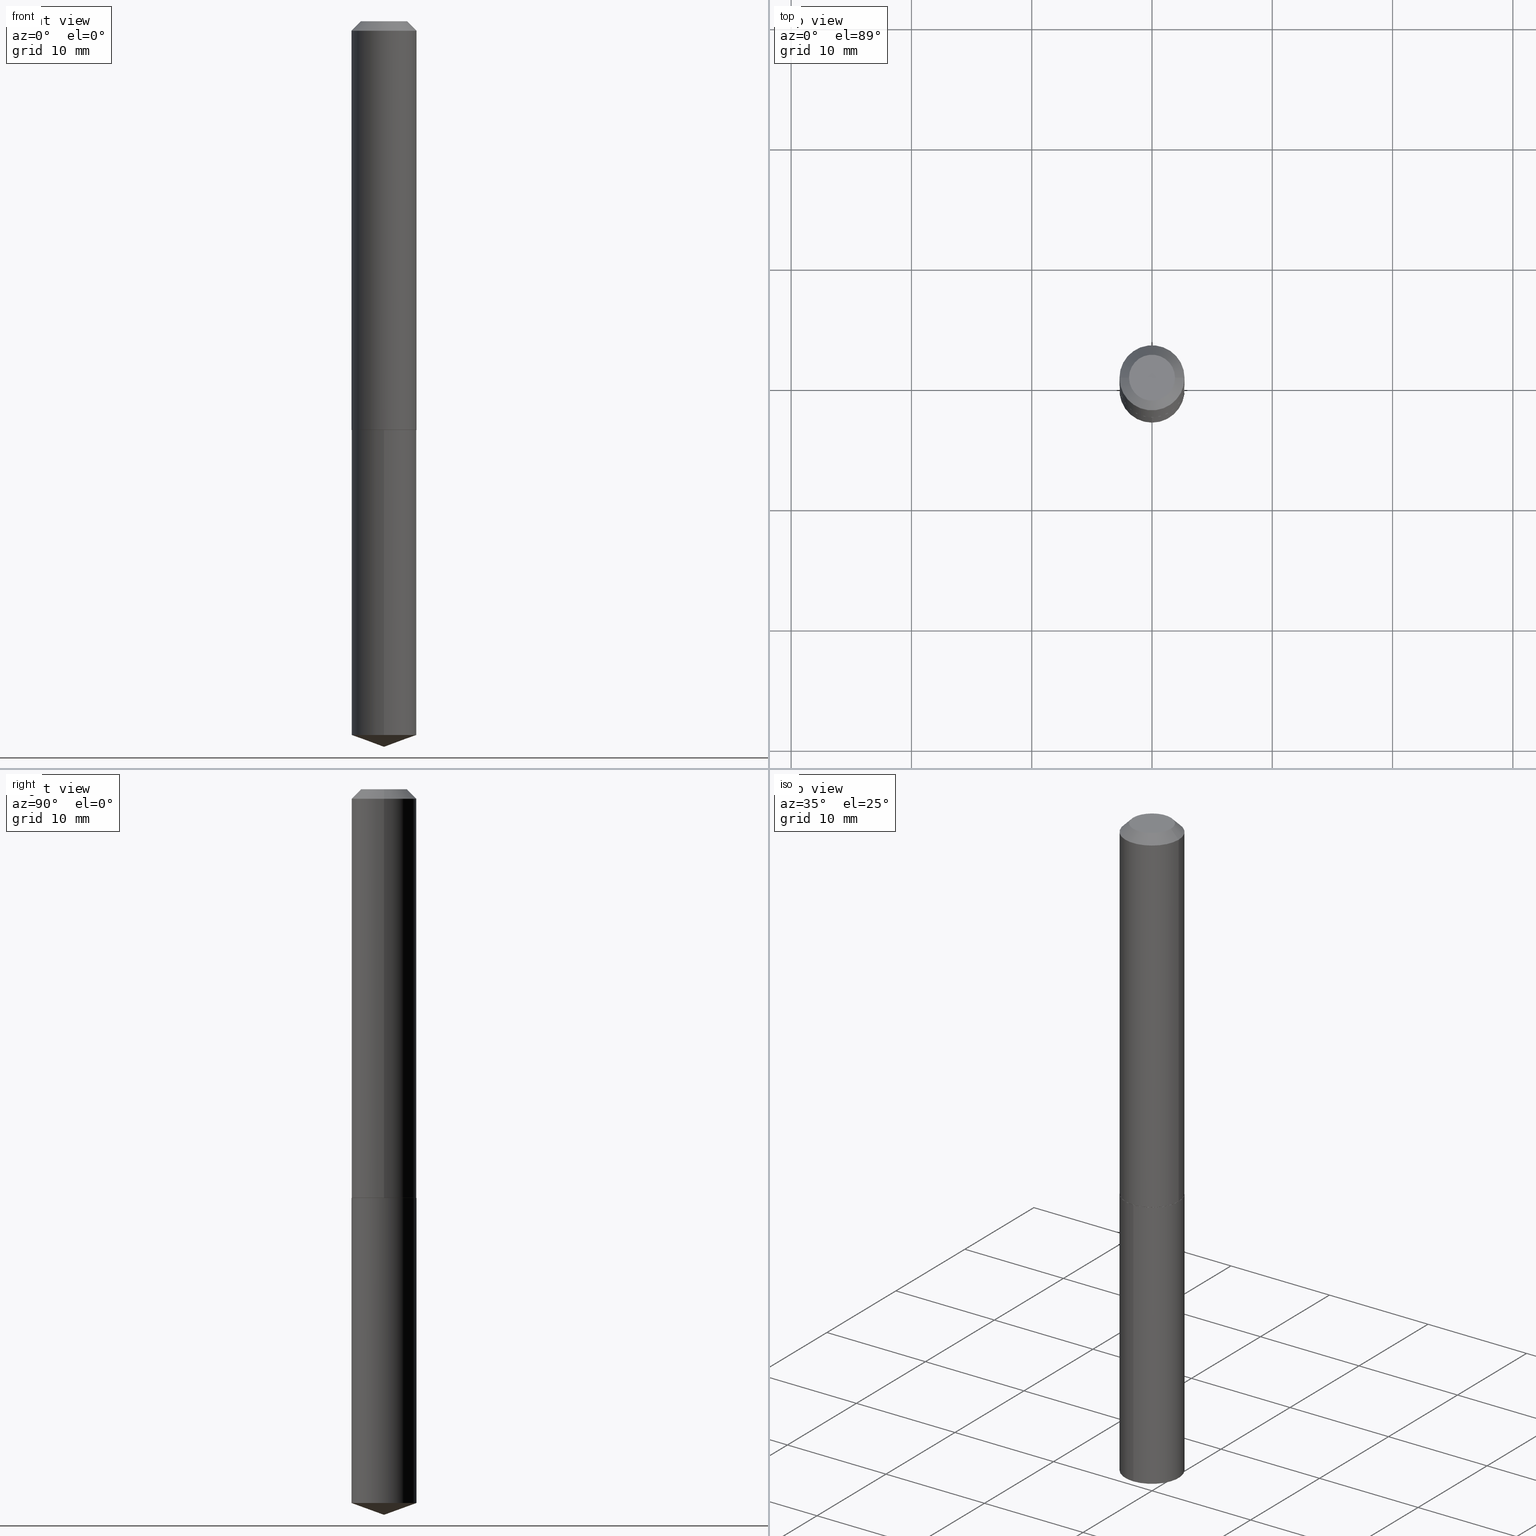
[diagram: canonical four-view strip — front | top / right | iso, engineering-drawing reading convention]
A machine part, canonical four-view strip (front | top / right | iso — engineering-drawing reading convention). The complete STEP part file that produces these views, byte-faithful:
ISO-10303-21;
HEADER;
FILE_DESCRIPTION (( 'STEP AP203' ),
    '1' );
FILE_NAME ('56003.STEP',
    '2024-04-22T19:34:57',
    ( '' ),
    ( '' ),
    'SwSTEP 2.0',
    'SolidWorks 2023',
    '' );
FILE_SCHEMA (( 'CONFIG_CONTROL_DESIGN' ));
ENDSEC;

DATA;
#1 = DIRECTION ( 'NONE',  ( -6.982962677686265133E-15, -1.000000000000000000, 2.565115487008698002E-15 ) ) ;
#2 = AXIS2_PLACEMENT_3D ( 'NONE', #129, #252, #187 ) ;
#3 = ORIENTED_EDGE ( 'NONE', *, *, #158, .T. ) ;
#4 = FACE_OUTER_BOUND ( 'NONE', #274, .T. ) ;
#5 = ORIENTED_EDGE ( 'NONE', *, *, #90, .F. ) ;
#6 = DIMENSIONAL_EXPONENTS ( 1.000000000000000000, 0.000000000000000000, 0.000000000000000000, 0.000000000000000000, 0.000000000000000000, 0.000000000000000000, 0.000000000000000000 ) ;
#7 = DIRECTION ( 'NONE',  ( 1.000000000000000000, 0.000000000000000000, 0.000000000000000000 ) ) ;
#8 = AXIS2_PLACEMENT_3D ( 'NONE', #228, #181, #309 ) ;
#9 = CARTESIAN_POINT ( 'NONE',  ( 5.807736114830398271E-29, -8.292629487511005111E-15, -2.375000000000000000 ) ) ;
#10 = VERTEX_POINT ( 'NONE', #286 ) ;
#11 = ORIENTED_EDGE ( 'NONE', *, *, #169, .F. ) ;
#12 = DIRECTION ( 'NONE',  ( 6.982962677686265922E-15, 1.000000000000000000, -3.491633468425686923E-15 ) ) ;
#13 = CARTESIAN_POINT ( 'NONE',  ( 3.272037262675713448E-29, -4.671602031372129721E-15, -1.338000000000000300 ) ) ;
#14 = LINE ( 'NONE', #352, #278 ) ;
#15 = EDGE_LOOP ( 'NONE', ( #77, #315, #342 ) ) ;
#16 = AXIS2_PLACEMENT_3D ( 'NONE', #196, #238, #243 ) ;
#17 = EDGE_CURVE ( 'NONE', #10, #287, #202, .T. ) ;
#18 = UNCERTAINTY_MEASURE_WITH_UNIT (LENGTH_MEASURE( 1.000000000000000082E-05 ), #363, 'distance_accuracy_value', 'NONE');
#19 = CONICAL_SURFACE ( 'NONE', #372, 0.1065000000000001640, 0.7853981633973970977 ) ;
#20 = DIRECTION ( 'NONE',  ( 1.000000000000000000, -6.982962677686266711E-15, 0.000000000000000000 ) ) ;
#21 = DIRECTION ( 'NONE',  ( -2.445468806185136597E-29, 3.491481338843145583E-15, 1.000000000000000000 ) ) ;
#22 = APPROVAL_ROLE ( '' ) ;
#23 = CARTESIAN_POINT ( 'NONE',  ( 3.270814528272620647E-29, -4.669856290702708218E-15, -1.337500000000000133 ) ) ;
#24 = APPROVAL_DATE_TIME ( #140, #177 ) ;
#25 = DIRECTION ( 'NONE',  ( -2.445468806185136877E-29, 3.491481338843145188E-15, 1.000000000000000000 ) ) ;
#26 = AXIS2_PLACEMENT_3D ( 'NONE', #214, #151, #12 ) ;
#27 =( NAMED_UNIT ( * ) PLANE_ANGLE_UNIT ( ) SI_UNIT ( $, .RADIAN. ) );
#28 = DIRECTION ( 'NONE',  ( -2.445468806185136597E-29, 3.491481338843145583E-15, 1.000000000000000000 ) ) ;
#29 = CARTESIAN_POINT ( 'NONE',  ( 5.713089078957504114E-29, -8.157080343747521940E-15, -2.336237170050650125 ) ) ;
#30 = ADVANCED_FACE ( 'NONE', ( #50 ), #259, .T. ) ;
#31 = AXIS2_PLACEMENT_3D ( 'NONE', #102, #162, #217 ) ;
#32 = DIRECTION ( 'NONE',  ( -2.445362574665431323E-29, 3.491633468425686923E-15, 1.000000000000000000 ) ) ;
#33 = PERSON_AND_ORGANIZATION ( #218, #193 ) ;
#34 = EDGE_LOOP ( 'NONE', ( #353, #371, #103 ) ) ;
#35 = AXIS2_PLACEMENT_3D ( 'NONE', #13, #191, #350 ) ;
#36 = CC_DESIGN_PERSON_AND_ORGANIZATION_ASSIGNMENT ( #356, #161, ( #380 ) ) ;
#37 = DIRECTION ( 'NONE',  ( 6.676917655467978384E-15, 0.9396926207859110924, 0.3420201433256611079 ) ) ;
#38 = ORIENTED_EDGE ( 'NONE', *, *, #123, .T. ) ;
#39 = APPLICATION_CONTEXT ( 'configuration controlled 3d designs of mechanical parts and assemblies' ) ;
#40 = DIRECTION ( 'NONE',  ( -1.000000000000000000, 6.982962677686267499E-15, 0.000000000000000000 ) ) ;
#41 = EDGE_LOOP ( 'NONE', ( #369, #264 ) ) ;
#42 = APPROVAL_PERSON_ORGANIZATION ( #316, #121, #318 ) ;
#43 = CALENDAR_DATE ( 2024, 22, 4 ) ;
#44 = DIRECTION ( 'NONE',  ( -6.982962677686267499E-15, -1.000000000000000000, 3.475157955500680377E-15 ) ) ;
#45 = ORIENTED_EDGE ( 'NONE', *, *, #340, .T. ) ;
#46 = CC_DESIGN_DATE_AND_TIME_ASSIGNMENT ( #165, #388, ( #88 ) ) ;
#47 = CC_DESIGN_DATE_AND_TIME_ASSIGNMENT ( #189, #262, ( #327 ) ) ;
#48 = COORDINATED_UNIVERSAL_TIME_OFFSET ( 5, 0, .BEHIND. ) ;
#49 = LINE ( 'NONE', #75, #153 ) ;
#50 = FACE_OUTER_BOUND ( 'NONE', #160, .T. ) ;
#51 = AXIS2_PLACEMENT_3D ( 'NONE', #125, #288, #20 ) ;
#52 = SHAPE_DEFINITION_REPRESENTATION ( #275, #329 ) ;
#53 = FACE_OUTER_BOUND ( 'NONE', #249, .T. ) ;
#54 = PERSON_AND_ORGANIZATION ( #218, #193 ) ;
#55 = EDGE_CURVE ( 'NONE', #303, #378, #289, .T. ) ;
#56 = DIRECTION ( 'NONE',  ( -6.982962677686265133E-15, -1.000000000000000000, 2.565115487008698002E-15 ) ) ;
#57 =( LENGTH_UNIT ( ) NAMED_UNIT ( * ) SI_UNIT ( $, .METRE. ) );
#58 = CARTESIAN_POINT ( 'NONE',  ( 0.000000000000000000, 0.000000000000000000, 0.000000000000000000 ) ) ;
#59 = CARTESIAN_POINT ( 'NONE',  ( 7.642090019328602662E-31, -1.091087918388490267E-16, -0.03125000000000020817 ) ) ;
#60 = ADVANCED_FACE ( 'NONE', ( #236 ), #127, .T. ) ;
#61 = AXIS2_PLACEMENT_3D ( 'NONE', #58, #28, #89 ) ;
#62 = LOCAL_TIME ( 15, 34, 57.00000000000000000, #324 ) ;
#63 = ORIENTED_EDGE ( 'NONE', *, *, #376, .T. ) ;
#64 = VERTEX_POINT ( 'NONE', #119 ) ;
#65 = CIRCLE ( 'NONE', #358, 0.1065000000000001640 ) ;
#66 = VECTOR ( 'NONE', #25, 39.37007874015748143 ) ;
#67 = FACE_OUTER_BOUND ( 'NONE', #41, .T. ) ;
#68 = ORIENTED_EDGE ( 'NONE', *, *, #244, .F. ) ;
#69 = EDGE_CURVE ( 'NONE', #71, #306, #147, .T. ) ;
#70 = CARTESIAN_POINT ( 'NONE',  ( -9.046623886020848298E-28, 1.291734586455588968E-13, 36.99507874015748143 ) ) ;
#71 = VERTEX_POINT ( 'NONE', #292 ) ;
#72 = CARTESIAN_POINT ( 'NONE',  ( 5.713089078957504114E-29, -8.157080343747521940E-15, -2.336237170050650125 ) ) ;
#73 = CIRCLE ( 'NONE', #51, 0.1060000000000000386 ) ;
#74 = PERSON_AND_ORGANIZATION_ROLE ( 'design_owner' ) ;
#75 = CARTESIAN_POINT ( 'NONE',  ( 0.1065000000000001640, -5.413541815876296348E-15, -1.337500000000000133 ) ) ;
#76 = EDGE_CURVE ( 'NONE', #180, #64, #198, .T. ) ;
#77 = ORIENTED_EDGE ( 'NONE', *, *, #226, .F. ) ;
#78 = ORIENTED_EDGE ( 'NONE', *, *, #69, .F. ) ;
#79 = PERSON_AND_ORGANIZATION_ROLE ( 'classification_officer' ) ;
#80 = DIRECTION ( 'NONE',  ( -0.7071067811865453523, 2.468850131082234184E-15, -0.7071067811865496822 ) ) ;
#81 = COORDINATED_UNIVERSAL_TIME_OFFSET ( 5, 0, .BEHIND. ) ;
#82 = CYLINDRICAL_SURFACE ( 'NONE', #148, 0.1065000000000000807 ) ;
#83 = APPLICATION_PROTOCOL_DEFINITION ( 'international standard', 'config_control_design', 1994, #240 ) ;
#84 = DIRECTION ( 'NONE',  ( 2.445468806185136597E-29, -3.491481338843145583E-15, -1.000000000000000000 ) ) ;
#85 = DIRECTION ( 'NONE',  ( -2.445362574665431043E-29, 3.491633468425686528E-15, 1.000000000000000000 ) ) ;
#86 = DIRECTION ( 'NONE',  ( -2.445468806185136597E-29, 3.491481338843145583E-15, 1.000000000000000000 ) ) ;
#87 = AXIS2_PLACEMENT_3D ( 'NONE', #256, #381, #56 ) ;
#88 = SECURITY_CLASSIFICATION ( '', '', #186 ) ;
#89 = DIRECTION ( 'NONE',  ( 1.000000000000000000, -6.982962677686267499E-15, 4.876176775795935232E-29 ) ) ;
#90 = EDGE_CURVE ( 'NONE', #145, #361, #222, .T. ) ;
#91 = DIRECTION ( 'NONE',  ( -2.445468806185136597E-29, 3.491481338843145583E-15, 1.000000000000000000 ) ) ;
#92 = CC_DESIGN_APPROVAL ( #177, ( #327 ) ) ;
#93 = EDGE_CURVE ( 'NONE', #283, #306, #110, .T. ) ;
#94 = EDGE_CURVE ( 'NONE', #126, #283, #365, .T. ) ;
#95 = CIRCLE ( 'NONE', #174, 0.1064999999999999974 ) ;
#96 = DIRECTION ( 'NONE',  ( 0.7071067811865112684, -2.468850131081876830E-15, 0.7071067811865837660 ) ) ;
#97 = ORIENTED_EDGE ( 'NONE', *, *, #123, .F. ) ;
#98 = DIRECTION ( 'NONE',  ( -2.445362574665431043E-29, 3.491633468425686528E-15, 1.000000000000000000 ) ) ;
#99 = EDGE_LOOP ( 'NONE', ( #284, #38 ) ) ;
#100 = PRODUCT_RELATED_PRODUCT_CATEGORY ( 'detail', '', ( #333 ) ) ;
#101 = EDGE_CURVE ( 'NONE', #145, #306, #115, .T. ) ;
#102 = CARTESIAN_POINT ( 'NONE',  ( -9.046623886020848298E-28, 1.291734586455588968E-13, 36.99507874015748143 ) ) ;
#103 = ORIENTED_EDGE ( 'NONE', *, *, #237, .F. ) ;
#104 = APPROVAL_STATUS ( 'not_yet_approved' ) ;
#105 = DIRECTION ( 'NONE',  ( 1.000000000000000000, -6.982962677686265922E-15, 4.876176775795935793E-29 ) ) ;
#106 = CALENDAR_DATE ( 2024, 22, 4 ) ;
#107 = PLANE ( 'NONE',  #26 ) ;
#108 = PERSON_AND_ORGANIZATION_ROLE ( 'creator' ) ;
#109 = CARTESIAN_POINT ( 'NONE',  ( -7.436855251735545052E-16, -0.1065000000000046743, -1.337999999999999856 ) ) ;
#110 = LINE ( 'NONE', #362, #134 ) ;
#111 = EDGE_CURVE ( 'NONE', #306, #71, #178, .T. ) ;
#112 = AXIS2_PLACEMENT_3D ( 'NONE', #188, #21, #260 ) ;
#113 = AXIS2_PLACEMENT_3D ( 'NONE', #345, #308, #40 ) ;
#114 = COORDINATED_UNIVERSAL_TIME_OFFSET ( 5, 0, .BEHIND. ) ;
#115 = LINE ( 'NONE', #390, #212 ) ;
#116 = DIRECTION ( 'NONE',  ( -2.445468806185136597E-29, 3.491481338843145583E-15, 1.000000000000000000 ) ) ;
#117 = CARTESIAN_POINT ( 'NONE',  ( -0.1065000000000001640, -3.913128277118200453E-15, -1.337500000000000133 ) ) ;
#118 = CC_DESIGN_PERSON_AND_ORGANIZATION_ASSIGNMENT ( #132, #108, ( #327 ) ) ;
#119 = CARTESIAN_POINT ( 'NONE',  ( -7.436855251735300505E-16, -0.1065000000000081160, -2.336237170050649681 ) ) ;
#120 = DIRECTION ( 'NONE',  ( -1.000000000000000000, 6.982962677686267499E-15, 0.000000000000000000 ) ) ;
#121 = APPROVAL ( #295, 'UNSPECIFIED' ) ;
#122 = ORIENTED_EDGE ( 'NONE', *, *, #111, .F. ) ;
#123 = EDGE_CURVE ( 'NONE', #283, #126, #367, .T. ) ;
#124 = APPROVAL ( #351, 'UNSPECIFIED' ) ;
#125 = CARTESIAN_POINT ( 'NONE',  ( 3.272037262675713448E-29, -4.671602031372129721E-15, -1.338000000000000300 ) ) ;
#126 = VERTEX_POINT ( 'NONE', #166 ) ;
#127 = CONICAL_SURFACE ( 'NONE', #247, 0.1065000000000000113, 0.7853981633974452814 ) ;
#128 = AXIS2_PLACEMENT_3D ( 'NONE', #152, #156, #105 ) ;
#129 = CARTESIAN_POINT ( 'NONE',  ( 5.989671091818683705E-48, -8.551662891793989687E-34, -2.449293598294718806E-19 ) ) ;
#130 = CARTESIAN_POINT ( 'NONE',  ( 7.567280135845393189E-16, 0.1064999999999953206, -1.338000000000000300 ) ) ;
#131 = ORIENTED_EDGE ( 'NONE', *, *, #101, .F. ) ;
#132 = PERSON_AND_ORGANIZATION ( #218, #193 ) ;
#133 = ORIENTED_EDGE ( 'NONE', *, *, #90, .T. ) ;
#134 = VECTOR ( 'NONE', #269, 39.37007874015748143 ) ;
#135 = PERSON_AND_ORGANIZATION_ROLE ( 'design_supplier' ) ;
#136 = DIRECTION ( 'NONE',  ( -2.445362574665431043E-29, 3.491633468425686528E-15, 1.000000000000000000 ) ) ;
#137 = EDGE_CURVE ( 'NONE', #361, #145, #65, .T. ) ;
#138 = CARTESIAN_POINT ( 'NONE',  ( 3.272037262675712888E-29, -4.671602031372128143E-15, -1.338000000000000078 ) ) ;
#139 = FACE_OUTER_BOUND ( 'NONE', #149, .T. ) ;
#140 = DATE_AND_TIME ( #234, #328 ) ;
#141 = DIRECTION ( 'NONE',  ( -2.445468806185136597E-29, 3.491481338843145583E-15, 1.000000000000000000 ) ) ;
#142 = CARTESIAN_POINT ( 'NONE',  ( 7.642090019328602662E-31, -1.091087918388490267E-16, -0.03125000000000020817 ) ) ;
#143 = ADVANCED_FACE ( 'NONE', ( #139 ), #266, .T. ) ;
#144 = DIRECTION ( 'NONE',  ( 1.000000000000000000, -6.982962677686262766E-15, 0.000000000000000000 ) ) ;
#145 = VERTEX_POINT ( 'NONE', #271 ) ;
#146 = DIRECTION ( 'NONE',  ( -6.982962677686265133E-15, -1.000000000000000000, 2.565115487008698002E-15 ) ) ;
#147 = CIRCLE ( 'NONE', #347, 0.1065000000000000113 ) ;
#148 = AXIS2_PLACEMENT_3D ( 'NONE', #207, #354, #230 ) ;
#149 = EDGE_LOOP ( 'NONE', ( #133, #211, #122, #131 ) ) ;
#150 = EDGE_CURVE ( 'NONE', #297, #64, #232, .T. ) ;
#151 = DIRECTION ( 'NONE',  ( 2.445362574665430482E-29, -3.491633468425686923E-15, -1.000000000000000000 ) ) ;
#152 = CARTESIAN_POINT ( 'NONE',  ( 8.640926142602834777E-30, -8.119915819601166498E-15, -1.338000000000000300 ) ) ;
#153 = VECTOR ( 'NONE', #96, 39.37007874015748143 ) ;
#154 = LOCAL_TIME ( 15, 34, 57.00000000000000000, #81 ) ;
#155 = ORIENTED_EDGE ( 'NONE', *, *, #244, .T. ) ;
#156 = DIRECTION ( 'NONE',  ( -2.438088387897960049E-29, 3.491481338843145188E-15, 1.000000000000000000 ) ) ;
#157 = ORIENTED_EDGE ( 'NONE', *, *, #340, .F. ) ;
#158 = EDGE_CURVE ( 'NONE', #297, #378, #220, .T. ) ;
#159 = FACE_OUTER_BOUND ( 'NONE', #338, .T. ) ;
#160 = EDGE_LOOP ( 'NONE', ( #68, #339, #375, #215 ) ) ;
#161 = PERSON_AND_ORGANIZATION_ROLE ( 'creator' ) ;
#162 = DIRECTION ( 'NONE',  ( -2.445362574665431043E-29, 3.491633468425686528E-15, 1.000000000000000000 ) ) ;
#163 = CARTESIAN_POINT ( 'NONE',  ( 7.567280135845637736E-16, 0.1064999999999953206, -1.338000000000000300 ) ) ;
#164 = ORIENTED_EDGE ( 'NONE', *, *, #55, .F. ) ;
#165 = DATE_AND_TIME ( #192, #154 ) ;
#166 = CARTESIAN_POINT ( 'NONE',  ( -0.07524999999999999745, 5.800223374153149725E-16, -4.898587196628091026E-19 ) ) ;
#167 = CARTESIAN_POINT ( 'NONE',  ( 0.1065000000000000113, -8.527943170124366394E-16, -0.03125000000000020817 ) ) ;
#168 = DIRECTION ( 'NONE',  ( 1.000000000000000000, -6.982962677686265922E-15, 4.876211453340348118E-29 ) ) ;
#169 = EDGE_CURVE ( 'NONE', #10, #145, #49, .T. ) ;
#170 = VECTOR ( 'NONE', #332, 39.37007874015748143 ) ;
#171 = CONICAL_SURFACE ( 'NONE', #302, 108.1684023407347013, 1.221730476396035270 ) ;
#172 = CARTESIAN_POINT ( 'NONE',  ( 7.642090019328602662E-31, -1.091087918388490267E-16, -0.03125000000000020817 ) ) ;
#173 = ADVANCED_FACE ( 'NONE', ( #159 ), #298, .T. ) ;
#174 = AXIS2_PLACEMENT_3D ( 'NONE', #138, #85, #146 ) ;
#175 = ORIENTED_EDGE ( 'NONE', *, *, #158, .F. ) ;
#176 = CARTESIAN_POINT ( 'NONE',  ( 0.000000000000000000, 0.000000000000000000, 0.000000000000000000 ) ) ;
#177 = APPROVAL ( #104, 'UNSPECIFIED' ) ;
#178 = CIRCLE ( 'NONE', #320, 0.1065000000000000113 ) ;
#179 = CARTESIAN_POINT ( 'NONE',  ( -0.1065000000000001640, -3.913128277118200453E-15, -1.337500000000000133 ) ) ;
#180 = VERTEX_POINT ( 'NONE', #9 ) ;
#181 = DIRECTION ( 'NONE',  ( -2.445362574665431043E-29, 3.491633468425686528E-15, 1.000000000000000000 ) ) ;
#182 = ADVANCED_FACE ( 'NONE', ( #183 ), #107, .F. ) ;
#183 = FACE_OUTER_BOUND ( 'NONE', #337, .T. ) ;
#184 = VECTOR ( 'NONE', #285, 39.37007874015748143 ) ;
#185 = LOCAL_TIME ( 15, 34, 57.00000000000000000, #348 ) ;
#186 = SECURITY_CLASSIFICATION_LEVEL ( 'unclassified' ) ;
#187 = DIRECTION ( 'NONE',  ( -1.000000000000000000, 6.982962677686265922E-15, -4.876176775795935793E-29 ) ) ;
#188 = CARTESIAN_POINT ( 'NONE',  ( 3.270814528272620647E-29, -4.669856290702708218E-15, -1.337500000000000133 ) ) ;
#189 = DATE_AND_TIME ( #106, #62 ) ;
#190 = CARTESIAN_POINT ( 'NONE',  ( -0.1060000000000000386, -3.915777504292311654E-15, -1.338000000000000300 ) ) ;
#191 = DIRECTION ( 'NONE',  ( -2.445468806185136597E-29, 3.491481338843145583E-15, 1.000000000000000000 ) ) ;
#192 = CALENDAR_DATE ( 2024, 22, 4 ) ;
#193 = ORGANIZATION ( 'UNSPECIFIED', 'UNSPECIFIED', '' ) ;
#194 = DATE_AND_TIME ( #43, #185 ) ;
#195 = LINE ( 'NONE', #296, #66 ) ;
#196 = CARTESIAN_POINT ( 'NONE',  ( 1.197934218363736741E-47, -1.710332578358797937E-33, -4.898587196589437612E-19 ) ) ;
#197 = LINE ( 'NONE', #319, #360 ) ;
#198 = LINE ( 'NONE', #301, #170 ) ;
#199 = ORIENTED_EDGE ( 'NONE', *, *, #93, .F. ) ;
#200 = CARTESIAN_POINT ( 'NONE',  ( 3.270814528272620647E-29, -4.669856290702708218E-15, -1.337500000000000133 ) ) ;
#201 = CARTESIAN_POINT ( 'NONE',  ( 3.270814528272620647E-29, -4.669856290702708218E-15, -1.337500000000000133 ) ) ;
#202 = CIRCLE ( 'NONE', #35, 0.1060000000000000386 ) ;
#203 = VECTOR ( 'NONE', #258, 39.37007874015748143 ) ;
#204 = DIRECTION ( 'NONE',  ( -2.445468806185136597E-29, 3.491481338843145583E-15, 1.000000000000000000 ) ) ;
#205 = ADVANCED_FACE ( 'NONE', ( #377 ), #255, .F. ) ;
#206 = ORIENTED_EDGE ( 'NONE', *, *, #137, .T. ) ;
#207 = CARTESIAN_POINT ( 'NONE',  ( 0.000000000000000000, 0.000000000000000000, 0.000000000000000000 ) ) ;
#208 = MANIFOLD_SOLID_BREP ( 'Body-Move/Copy2[1]', #241 ) ;
#209 = LOCAL_TIME ( 15, 34, 57.00000000000000000, #48 ) ;
#210 = ADVANCED_FACE ( 'NONE', ( #343 ), #171, .T. ) ;
#211 = ORIENTED_EDGE ( 'NONE', *, *, #336, .T. ) ;
#212 = VECTOR ( 'NONE', #359, 39.37007874015748143 ) ;
#213 = AXIS2_PLACEMENT_3D ( 'NONE', #72, #98, #313 ) ;
#214 = CARTESIAN_POINT ( 'NONE',  ( 3.272037262675712888E-29, -4.671602031372128143E-15, -1.338000000000000078 ) ) ;
#215 = ORIENTED_EDGE ( 'NONE', *, *, #137, .F. ) ;
#216 = ADVANCED_FACE ( 'NONE', ( #374 ), #250, .T. ) ;
#217 = DIRECTION ( 'NONE',  ( -6.982962677686267499E-15, -1.000000000000000000, 3.475157955500680377E-15 ) ) ;
#218 = PERSON ( 'UNSPECIFIED', 'UNSPECIFIED', 'UNSPECIFIED', ('UNSPECIFIED'), ('UNSPECIFIED'), ('UNSPECIFIED') ) ;
#219 = APPROVAL_DATE_TIME ( #194, #121 ) ;
#220 = LINE ( 'NONE', #130, #184 ) ;
#221 = ORIENTED_EDGE ( 'NONE', *, *, #17, .T. ) ;
#222 = CIRCLE ( 'NONE', #341, 0.1065000000000001640 ) ;
#223 = CC_DESIGN_APPROVAL ( #124, ( #380 ) ) ;
#224 = APPROVAL_DATE_TIME ( #268, #124 ) ;
#225 = CARTESIAN_POINT ( 'NONE',  ( 0.07524999999999999745, -6.780021514669125702E-16, -4.898587196547362783E-19 ) ) ;
#226 = EDGE_CURVE ( 'NONE', #180, #297, #14, .T. ) ;
#227 = PERSON_AND_ORGANIZATION ( #218, #193 ) ;
#228 = CARTESIAN_POINT ( 'NONE',  ( 3.272037262675712888E-29, -4.671602031372128143E-15, -1.338000000000000078 ) ) ;
#229 = PERSON_AND_ORGANIZATION ( #218, #193 ) ;
#230 = DIRECTION ( 'NONE',  ( 1.000000000000000000, -6.982962677686267499E-15, 4.876176775795935232E-29 ) ) ;
#231 = DIRECTION ( 'NONE',  ( -2.445468806185136597E-29, 3.491481338843145583E-15, 1.000000000000000000 ) ) ;
#232 = CIRCLE ( 'NONE', #334, 0.1064999999999999974 ) ;
#233 = APPROVAL_PERSON_ORGANIZATION ( #385, #177, #22 ) ;
#234 = CALENDAR_DATE ( 2024, 22, 4 ) ;
#235 = LINE ( 'NONE', #386, #387 ) ;
#236 = FACE_OUTER_BOUND ( 'NONE', #279, .T. ) ;
#237 = EDGE_CURVE ( 'NONE', #64, #297, #248, .T. ) ;
#238 = DIRECTION ( 'NONE',  ( -2.445468806185136597E-29, 3.491481338843145583E-15, 1.000000000000000000 ) ) ;
#239 = CARTESIAN_POINT ( 'NONE',  ( 3.272037262675712888E-29, -4.671602031372128143E-15, -1.338000000000000078 ) ) ;
#240 = APPLICATION_CONTEXT ( 'configuration controlled 3d designs of mechanical parts and assemblies' ) ;
#241 = CLOSED_SHELL ( 'NONE', ( #267, #210, #216, #322, #182 ) ) ;
#242 = CC_DESIGN_APPROVAL ( #121, ( #88 ) ) ;
#243 = DIRECTION ( 'NONE',  ( 1.000000000000000000, -6.982962677686265922E-15, 4.876211453340348118E-29 ) ) ;
#244 = EDGE_CURVE ( 'NONE', #287, #361, #349, .T. ) ;
#245 = ORIENTED_EDGE ( 'NONE', *, *, #94, .F. ) ;
#246 = APPLICATION_PROTOCOL_DEFINITION ( 'international standard', 'config_control_design', 1994, #39 ) ;
#247 = AXIS2_PLACEMENT_3D ( 'NONE', #142, #84, #120 ) ;
#248 = CIRCLE ( 'NONE', #213, 0.1064999999999999974 ) ;
#249 = EDGE_LOOP ( 'NONE', ( #175, #383, #254, #157 ) ) ;
#250 = CONICAL_SURFACE ( 'NONE', #31, 108.1684023407347013, 1.221730476396035270 ) ;
#251 = ORIENTED_EDGE ( 'NONE', *, *, #93, .T. ) ;
#252 = DIRECTION ( 'NONE',  ( 2.438088387897960049E-29, -3.491481338843145188E-15, -1.000000000000000000 ) ) ;
#253 = EDGE_LOOP ( 'NONE', ( #373, #3, #164, #311 ) ) ;
#254 = ORIENTED_EDGE ( 'NONE', *, *, #299, .T. ) ;
#255 = PLANE ( 'NONE',  #2 ) ;
#256 = CARTESIAN_POINT ( 'NONE',  ( 3.272037262675712888E-29, -4.671602031372128143E-15, -1.338000000000000078 ) ) ;
#257 = CC_DESIGN_PERSON_AND_ORGANIZATION_ASSIGNMENT ( #33, #74, ( #333 ) ) ;
#258 = DIRECTION ( 'NONE',  ( -0.7071067811865112684, 7.493145998870223209E-15, 0.7071067811865837660 ) ) ;
#259 = CONICAL_SURFACE ( 'NONE', #112, 0.1065000000000001640, 0.7853981633973970977 ) ;
#260 = DIRECTION ( 'NONE',  ( 1.000000000000000000, -6.982962677686262766E-15, 0.000000000000000000 ) ) ;
#261 = AXIS2_PLACEMENT_3D ( 'NONE', #176, #276, #7 ) ;
#262 = DATE_TIME_ROLE ( 'creation_date' ) ;
#263 = FACE_OUTER_BOUND ( 'NONE', #253, .T. ) ;
#264 = ORIENTED_EDGE ( 'NONE', *, *, #293, .F. ) ;
#265 = DIRECTION ( 'NONE',  ( 1.000000000000000000, -6.982962677686262766E-15, 0.000000000000000000 ) ) ;
#266 = CYLINDRICAL_SURFACE ( 'NONE', #61, 0.1065000000000000807 ) ;
#267 = ADVANCED_FACE ( 'NONE', ( #263 ), #280, .T. ) ;
#268 = DATE_AND_TIME ( #382, #209 ) ;
#269 = DIRECTION ( 'NONE',  ( 0.7071067811865453523, -7.319954787623248157E-15, -0.7071067811865496822 ) ) ;
#270 =( NAMED_UNIT ( * ) SI_UNIT ( $, .STERADIAN. ) SOLID_ANGLE_UNIT ( ) );
#271 = CARTESIAN_POINT ( 'NONE',  ( 0.1065000000000001640, -5.413541815876296348E-15, -1.337500000000000133 ) ) ;
#272 = ADVANCED_FACE ( 'NONE', ( #67 ), #379, .F. ) ;
#273 = DIRECTION ( 'NONE',  ( -2.445362574665431043E-29, 3.491633468425686528E-15, 1.000000000000000000 ) ) ;
#274 = EDGE_LOOP ( 'NONE', ( #290, #206, #321, #78 ) ) ;
#275 = PRODUCT_DEFINITION_SHAPE ( 'NONE', 'NONE',  #327 ) ;
#276 = DIRECTION ( 'NONE',  ( 0.000000000000000000, 0.000000000000000000, 1.000000000000000000 ) ) ;
#277 = CLOSED_SHELL ( 'NONE', ( #60, #143, #370, #272, #30, #307, #173, #205 ) ) ;
#278 = VECTOR ( 'NONE', #37, 39.37007874015748854 ) ;
#279 = EDGE_LOOP ( 'NONE', ( #97, #251, #355, #346 ) ) ;
#280 = CYLINDRICAL_SURFACE ( 'NONE', #8, 0.1064999999999999974 ) ;
#281 = AXIS2_PLACEMENT_3D ( 'NONE', #239, #357, #389 ) ;
#282 = CC_DESIGN_PERSON_AND_ORGANIZATION_ASSIGNMENT ( #227, #79, ( #88 ) ) ;
#283 = VERTEX_POINT ( 'NONE', #225 ) ;
#284 = ORIENTED_EDGE ( 'NONE', *, *, #94, .T. ) ;
#285 = DIRECTION ( 'NONE',  ( -2.445362574665431323E-29, 3.491633468425686923E-15, 1.000000000000000000 ) ) ;
#286 = CARTESIAN_POINT ( 'NONE',  ( 0.1060000000000000386, -5.411796075206874056E-15, -1.338000000000000300 ) ) ;
#287 = VERTEX_POINT ( 'NONE', #190 ) ;
#288 = DIRECTION ( 'NONE',  ( -2.445468806185136597E-29, 3.491481338843145583E-15, 1.000000000000000000 ) ) ;
#289 = CIRCLE ( 'NONE', #87, 0.1064999999999999974 ) ;
#290 = ORIENTED_EDGE ( 'NONE', *, *, #336, .F. ) ;
#291 = CC_DESIGN_SECURITY_CLASSIFICATION ( #88, ( #380 ) ) ;
#292 = CARTESIAN_POINT ( 'NONE',  ( -0.1065000000000000113, -1.632754527686270697E-15, -0.03125000000000020817 ) ) ;
#293 = EDGE_CURVE ( 'NONE', #287, #10, #73, .T. ) ;
#294 = DIRECTION ( 'NONE',  ( 1.000000000000000000, -6.982962677686267499E-15, 0.000000000000000000 ) ) ;
#295 = APPROVAL_STATUS ( 'not_yet_approved' ) ;
#296 = CARTESIAN_POINT ( 'NONE',  ( -0.1065000000000000807, 7.567280135845072715E-16, -5.238665871121478096E-30 ) ) ;
#297 = VERTEX_POINT ( 'NONE', #304 ) ;
#298 = CONICAL_SURFACE ( 'NONE', #113, 0.1065000000000000113, 0.7853981633974452814 ) ;
#299 = EDGE_CURVE ( 'NONE', #64, #303, #197, .T. ) ;
#300 = DESIGN_CONTEXT ( 'detailed design', #240, 'design' ) ;
#301 = CARTESIAN_POINT ( 'NONE',  ( 5.807736114830399392E-29, -8.292629487511005111E-15, -2.375000000000000000 ) ) ;
#302 = AXIS2_PLACEMENT_3D ( 'NONE', #70, #136, #44 ) ;
#303 = VERTEX_POINT ( 'NONE', #109 ) ;
#304 = CARTESIAN_POINT ( 'NONE',  ( 7.567280135845635764E-16, 0.1064999999999918096, -2.336237170050650125 ) ) ;
#305 = ORIENTED_EDGE ( 'NONE', *, *, #55, .T. ) ;
#306 = VERTEX_POINT ( 'NONE', #167 ) ;
#307 = ADVANCED_FACE ( 'NONE', ( #4 ), #82, .T. ) ;
#308 = DIRECTION ( 'NONE',  ( 2.445468806185136597E-29, -3.491481338843145583E-15, -1.000000000000000000 ) ) ;
#309 = DIRECTION ( 'NONE',  ( -6.982962677686265133E-15, -1.000000000000000000, 2.565115487008698002E-15 ) ) ;
#310 = EDGE_LOOP ( 'NONE', ( #221, #155, #5, #11 ) ) ;
#311 = ORIENTED_EDGE ( 'NONE', *, *, #299, .F. ) ;
#312 = AXIS2_PLACEMENT_3D ( 'NONE', #330, #231, #168 ) ;
#313 = DIRECTION ( 'NONE',  ( -6.982962677686265133E-15, -1.000000000000000000, 2.565115487008698002E-15 ) ) ;
#314 = APPROVAL_PERSON_ORGANIZATION ( #229, #124, #317 ) ;
#315 = ORIENTED_EDGE ( 'NONE', *, *, #76, .T. ) ;
#316 = PERSON_AND_ORGANIZATION ( #218, #193 ) ;
#317 = APPROVAL_ROLE ( '' ) ;
#318 = APPROVAL_ROLE ( '' ) ;
#319 = CARTESIAN_POINT ( 'NONE',  ( -7.436855251735545052E-16, -0.1065000000000046743, -1.337999999999999856 ) ) ;
#320 = AXIS2_PLACEMENT_3D ( 'NONE', #59, #116, #364 ) ;
#321 = ORIENTED_EDGE ( 'NONE', *, *, #101, .T. ) ;
#322 = ADVANCED_FACE ( 'NONE', ( #53 ), #384, .T. ) ;
#323 = FACE_OUTER_BOUND ( 'NONE', #310, .T. ) ;
#324 = COORDINATED_UNIVERSAL_TIME_OFFSET ( 5, 0, .BEHIND. ) ;
#325 = LENGTH_MEASURE_WITH_UNIT ( LENGTH_MEASURE( 0.02539999999999999897 ), #57 );
#326 = DIRECTION ( 'NONE',  ( 1.000000000000000000, -6.982962677686262766E-15, 0.000000000000000000 ) ) ;
#327 = PRODUCT_DEFINITION ( 'UNKNOWN', '', #380, #300 ) ;
#328 = LOCAL_TIME ( 15, 34, 57.00000000000000000, #114 ) ;
#329 = ADVANCED_BREP_SHAPE_REPRESENTATION ( '56003', ( #208, #344, #261 ), #335 ) ;
#330 = CARTESIAN_POINT ( 'NONE',  ( 1.197934218363736741E-47, -1.710332578358797937E-33, -4.898587196589437612E-19 ) ) ;
#331 = CC_DESIGN_PERSON_AND_ORGANIZATION_ASSIGNMENT ( #54, #135, ( #380 ) ) ;
#332 = DIRECTION ( 'NONE',  ( -6.561838499445211896E-15, -0.9396926207859086499, 0.3420201433256677137 ) ) ;
#333 = PRODUCT ( '56003', '56003', '', ( #368 ) ) ;
#334 = AXIS2_PLACEMENT_3D ( 'NONE', #29, #273, #1 ) ;
#335 =( GEOMETRIC_REPRESENTATION_CONTEXT ( 3 ) GLOBAL_UNCERTAINTY_ASSIGNED_CONTEXT ( ( #18 ) ) GLOBAL_UNIT_ASSIGNED_CONTEXT ( ( #363, #27, #270 ) ) REPRESENTATION_CONTEXT ( 'NONE', 'WORKASPACE' ) );
#336 = EDGE_CURVE ( 'NONE', #361, #71, #195, .T. ) ;
#337 = EDGE_LOOP ( 'NONE', ( #305, #45 ) ) ;
#338 = EDGE_LOOP ( 'NONE', ( #199, #245, #63, #366 ) ) ;
#339 = ORIENTED_EDGE ( 'NONE', *, *, #293, .T. ) ;
#340 = EDGE_CURVE ( 'NONE', #378, #303, #95, .T. ) ;
#341 = AXIS2_PLACEMENT_3D ( 'NONE', #23, #204, #326 ) ;
#342 = ORIENTED_EDGE ( 'NONE', *, *, #150, .F. ) ;
#343 = FACE_OUTER_BOUND ( 'NONE', #34, .T. ) ;
#344 = MANIFOLD_SOLID_BREP ( 'Body-Move/Copy2[2]', #277 ) ;
#345 = CARTESIAN_POINT ( 'NONE',  ( 7.642090019328602662E-31, -1.091087918388490267E-16, -0.03125000000000020817 ) ) ;
#346 = ORIENTED_EDGE ( 'NONE', *, *, #376, .F. ) ;
#347 = AXIS2_PLACEMENT_3D ( 'NONE', #172, #86, #294 ) ;
#348 = COORDINATED_UNIVERSAL_TIME_OFFSET ( 5, 0, .BEHIND. ) ;
#349 = LINE ( 'NONE', #179, #203 ) ;
#350 = DIRECTION ( 'NONE',  ( 1.000000000000000000, -6.982962677686266711E-15, 0.000000000000000000 ) ) ;
#351 = APPROVAL_STATUS ( 'not_yet_approved' ) ;
#352 = CARTESIAN_POINT ( 'NONE',  ( 5.808022883138115915E-29, -8.292222388748124323E-15, -2.375000000000000000 ) ) ;
#353 = ORIENTED_EDGE ( 'NONE', *, *, #76, .F. ) ;
#354 = DIRECTION ( 'NONE',  ( -2.445468806185136597E-29, 3.491481338843145583E-15, 1.000000000000000000 ) ) ;
#355 = ORIENTED_EDGE ( 'NONE', *, *, #111, .T. ) ;
#356 = PERSON_AND_ORGANIZATION ( #218, #193 ) ;
#357 = DIRECTION ( 'NONE',  ( -2.445362574665431043E-29, 3.491633468425686528E-15, 1.000000000000000000 ) ) ;
#358 = AXIS2_PLACEMENT_3D ( 'NONE', #201, #91, #144 ) ;
#359 = DIRECTION ( 'NONE',  ( -2.445468806185136877E-29, 3.491481338843145188E-15, 1.000000000000000000 ) ) ;
#360 = VECTOR ( 'NONE', #32, 39.37007874015748143 ) ;
#361 = VERTEX_POINT ( 'NONE', #117 ) ;
#362 = CARTESIAN_POINT ( 'NONE',  ( 0.1065000000000000113, -8.397518286015172026E-16, -0.03125000000000020817 ) ) ;
#363 =( CONVERSION_BASED_UNIT ( 'INCH', #325 ) LENGTH_UNIT ( ) NAMED_UNIT ( #6 ) );
#364 = DIRECTION ( 'NONE',  ( 1.000000000000000000, -6.982962677686267499E-15, 0.000000000000000000 ) ) ;
#365 = CIRCLE ( 'NONE', #312, 0.07524999999999999745 ) ;
#366 = ORIENTED_EDGE ( 'NONE', *, *, #69, .T. ) ;
#367 = CIRCLE ( 'NONE', #16, 0.07524999999999999745 ) ;
#368 = MECHANICAL_CONTEXT ( 'NONE', #39, 'mechanical' ) ;
#369 = ORIENTED_EDGE ( 'NONE', *, *, #17, .F. ) ;
#370 = ADVANCED_FACE ( 'NONE', ( #323 ), #19, .T. ) ;
#371 = ORIENTED_EDGE ( 'NONE', *, *, #226, .T. ) ;
#372 = AXIS2_PLACEMENT_3D ( 'NONE', #200, #141, #265 ) ;
#373 = ORIENTED_EDGE ( 'NONE', *, *, #237, .T. ) ;
#374 = FACE_OUTER_BOUND ( 'NONE', #15, .T. ) ;
#375 = ORIENTED_EDGE ( 'NONE', *, *, #169, .T. ) ;
#376 = EDGE_CURVE ( 'NONE', #126, #71, #235, .T. ) ;
#377 = FACE_OUTER_BOUND ( 'NONE', #99, .T. ) ;
#378 = VERTEX_POINT ( 'NONE', #163 ) ;
#379 = PLANE ( 'NONE',  #128 ) ;
#380 = PRODUCT_DEFINITION_FORMATION_WITH_SPECIFIED_SOURCE ( 'ANY', '', #333, .NOT_KNOWN. ) ;
#381 = DIRECTION ( 'NONE',  ( -2.445362574665431043E-29, 3.491633468425686528E-15, 1.000000000000000000 ) ) ;
#382 = CALENDAR_DATE ( 2024, 22, 4 ) ;
#383 = ORIENTED_EDGE ( 'NONE', *, *, #150, .T. ) ;
#384 = CYLINDRICAL_SURFACE ( 'NONE', #281, 0.1064999999999999974 ) ;
#385 = PERSON_AND_ORGANIZATION ( #218, #193 ) ;
#386 = CARTESIAN_POINT ( 'NONE',  ( -0.1065000000000000113, 6.345767333347384381E-16, -0.03125000000000020817 ) ) ;
#387 = VECTOR ( 'NONE', #80, 39.37007874015748143 ) ;
#388 = DATE_TIME_ROLE ( 'classification_date' ) ;
#389 = DIRECTION ( 'NONE',  ( -6.982962677686265133E-15, -1.000000000000000000, 2.565115487008698002E-15 ) ) ;
#390 = CARTESIAN_POINT ( 'NONE',  ( 0.1065000000000000807, -7.436855251735880318E-16, 5.193128266222675235E-30 ) ) ;
ENDSEC;
END-ISO-10303-21;
